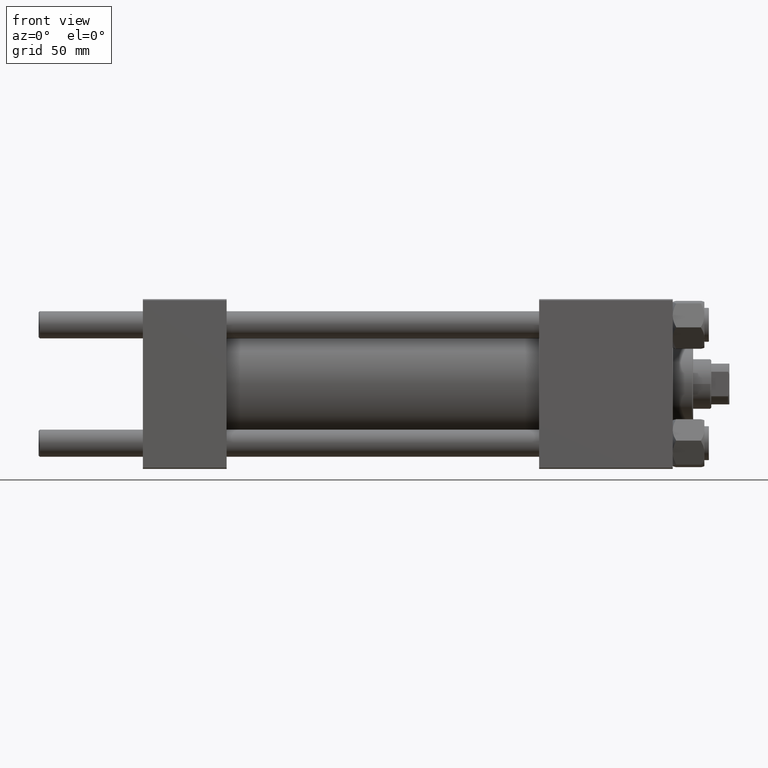
[diagram: clean part render]
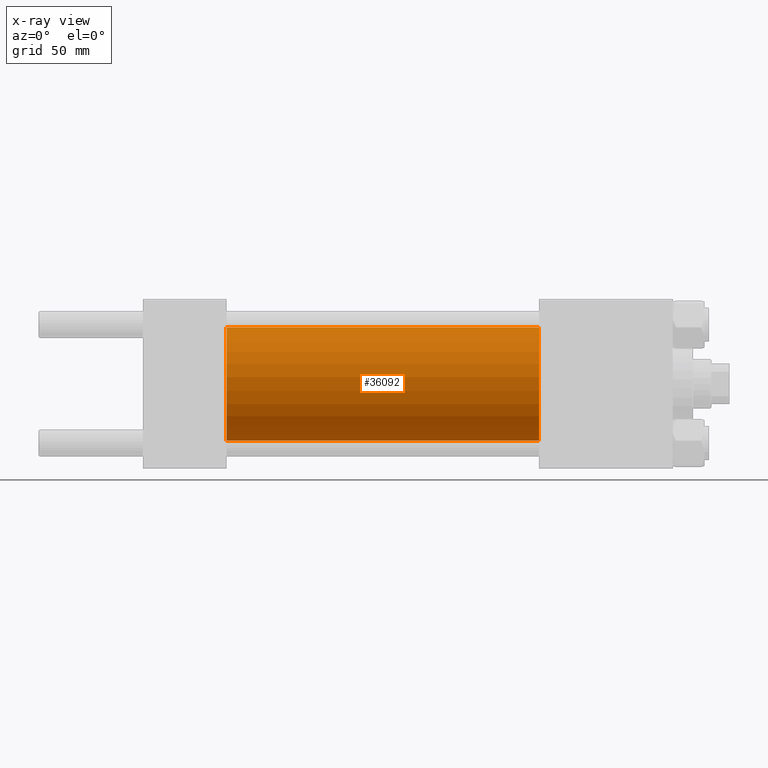
[diagram: x-ray — body ghosted, one internal face saturated and labeled with its STEP entity id]
A machine part, front view, then the same camera in x-ray: the body is ghosted and one INTERNAL B-rep face — a face not visible from any outside direction — is saturated and labeled: STEP entity #36092.
In plain terms, the highlighted cylindrical surface (partial cylindrical patch) has radius 25 mm, axis along (-1, -0, -0).
Its self-contained STEP definition (entity closure, byte-faithful):
#1545 = FACE_OUTER_BOUND ( 'NONE', #2993, .T. ) ;
#2344 = VERTEX_POINT ( 'NONE', #12309 ) ;
#2993 = EDGE_LOOP ( 'NONE', ( #37987, #21604, #36101, #5921 ) ) ;
#5469 = DIRECTION ( 'NONE',  ( 1.000000000000000000, 0.000000000000000000, 0.000000000000000000 ) ) ;
#5921 = ORIENTED_EDGE ( 'NONE', *, *, #17656, .F. ) ;
#6401 = VERTEX_POINT ( 'NONE', #39111 ) ;
#7415 = DIRECTION ( 'NONE',  ( 1.000000000000000000, 0.000000000000000000, 0.000000000000000000 ) ) ;
#8413 = CARTESIAN_POINT ( 'NONE',  ( 175.0000000000000284, 0.000000000000000000, 0.000000000000000000 ) ) ;
#9386 = CARTESIAN_POINT ( 'NONE',  ( 175.0000000000000284, 0.000000000000000000, 0.000000000000000000 ) ) ;
#10860 = CARTESIAN_POINT ( 'NONE',  ( 175.0000000000000284, 0.000000000000000000, 25.00000000000000000 ) ) ;
#12207 = AXIS2_PLACEMENT_3D ( 'NONE', #9386, #24805, #36402 ) ;
#12309 = CARTESIAN_POINT ( 'NONE',  ( 175.0000000000000284, 0.000000000000000000, 25.00000000000000000 ) ) ;
#12712 = EDGE_CURVE ( 'NONE', #2344, #6401, #37558, .T. ) ;
#13318 = DIRECTION ( 'NONE',  ( 0.000000000000000000, 0.000000000000000000, -1.000000000000000000 ) ) ;
#14376 = VECTOR ( 'NONE', #26274, 1000.000000000000000 ) ;
#14441 = VECTOR ( 'NONE', #18815, 1000.000000000000000 ) ;
#17656 = EDGE_CURVE ( 'NONE', #2344, #19880, #41901, .T. ) ;
#18088 = LINE ( 'NONE', #37255, #14441 ) ;
#18815 = DIRECTION ( 'NONE',  ( -1.000000000000000000, -0.000000000000000000, -0.000000000000000000 ) ) ;
#19337 = EDGE_CURVE ( 'NONE', #6401, #45558, #18088, .T. ) ;
#19880 = VERTEX_POINT ( 'NONE', #47121 ) ;
#21604 = ORIENTED_EDGE ( 'NONE', *, *, #19337, .T. ) ;
#24805 = DIRECTION ( 'NONE',  ( -1.000000000000000000, -0.000000000000000000, -0.000000000000000000 ) ) ;
#26274 = DIRECTION ( 'NONE',  ( -1.000000000000000000, -0.000000000000000000, -0.000000000000000000 ) ) ;
#27061 = EDGE_CURVE ( 'NONE', #19880, #45558, #36276, .T. ) ;
#34434 = DIRECTION ( 'NONE',  ( 0.000000000000000000, 0.000000000000000000, -1.000000000000000000 ) ) ;
#35600 = CARTESIAN_POINT ( 'NONE',  ( 37.00000000000000000, 3.061616997868383043E-15, -25.00000000000000000 ) ) ;
#36092 = ADVANCED_FACE ( 'NONE', ( #1545 ), #40693, .F. ) ;
#36101 = ORIENTED_EDGE ( 'NONE', *, *, #27061, .F. ) ;
#36276 = CIRCLE ( 'NONE', #45158, 25.00000000000000000 ) ;
#36402 = DIRECTION ( 'NONE',  ( 0.000000000000000000, 0.000000000000000000, 1.000000000000000000 ) ) ;
#36769 = AXIS2_PLACEMENT_3D ( 'NONE', #8413, #7415, #34434 ) ;
#37255 = CARTESIAN_POINT ( 'NONE',  ( 175.0000000000000284, 3.061616997868383043E-15, -25.00000000000000000 ) ) ;
#37558 = CIRCLE ( 'NONE', #36769, 25.00000000000000000 ) ;
#37987 = ORIENTED_EDGE ( 'NONE', *, *, #12712, .T. ) ;
#39111 = CARTESIAN_POINT ( 'NONE',  ( 175.0000000000000284, 3.061616997868383043E-15, -25.00000000000000000 ) ) ;
#40693 = CYLINDRICAL_SURFACE ( 'NONE', #12207, 25.00000000000000000 ) ;
#41901 = LINE ( 'NONE', #10860, #14376 ) ;
#43118 = CARTESIAN_POINT ( 'NONE',  ( 37.00000000000000000, 0.000000000000000000, 0.000000000000000000 ) ) ;
#45158 = AXIS2_PLACEMENT_3D ( 'NONE', #43118, #5469, #13318 ) ;
#45558 = VERTEX_POINT ( 'NONE', #35600 ) ;
#47121 = CARTESIAN_POINT ( 'NONE',  ( 37.00000000000000000, 0.000000000000000000, 25.00000000000000000 ) ) ;